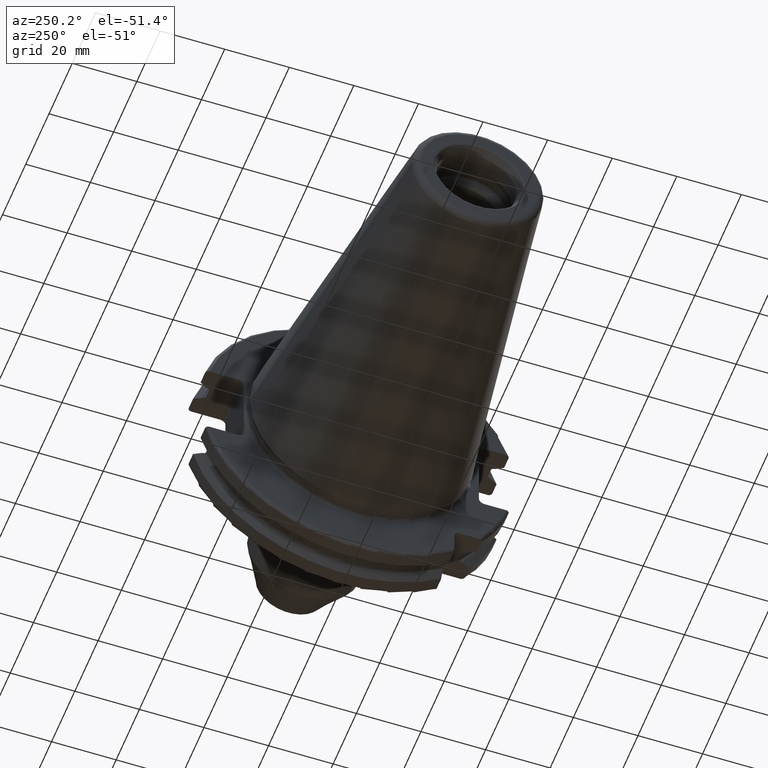
[diagram: clean part render]
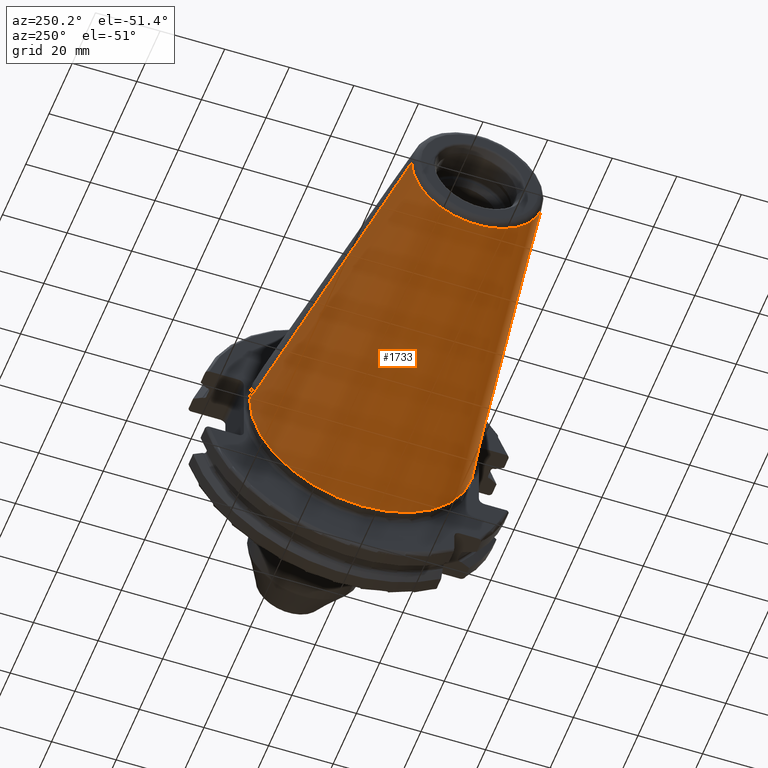
[diagram: same view with one face highlighted and labeled with its STEP entity id]
A machine part, auxiliary view. The second image highlights one B-rep face of the part: STEP entity #1733.
In plain terms, the highlighted conical surface has half-angle 8.298 deg.
Its self-contained STEP definition (entity closure, byte-faithful):
#32=CARTESIAN_POINT('',(-9.967471700563E1,0.E0,0.E0));
#33=DIRECTION('',(-1.E0,0.E0,0.E0));
#34=DIRECTION('',(0.E0,1.E0,0.E0));
#35=AXIS2_PLACEMENT_3D('',#32,#33,#34);
#47=DIRECTION('',(-9.895312636440E-1,-1.443186691705E-1,0.E0));
#48=VECTOR('',#47,1.002343617797E2);
#49=CARTESIAN_POINT('',(-4.896823332305E-1,3.485358204157E1,0.E0));
#50=LINE('',#49,#48);
#51=DIRECTION('',(-9.895312636440E-1,1.443186691705E-1,0.E0));
#52=VECTOR('',#51,1.002343617797E2);
#53=CARTESIAN_POINT('',(-4.896823332305E-1,-3.485358204157E1,0.E0));
#54=LINE('',#53,#52);
#55=CARTESIAN_POINT('',(-4.896823332305E-1,0.E0,0.E0));
#56=DIRECTION('',(-1.E0,0.E0,0.E0));
#57=DIRECTION('',(0.E0,1.E0,0.E0));
#58=AXIS2_PLACEMENT_3D('',#55,#56,#57);
#1388=CARTESIAN_POINT('',(-9.967471700563E1,2.038789234437E1,0.E0));
#1390=VERTEX_POINT('',#1388);
#1392=CARTESIAN_POINT('',(-9.967471700563E1,-2.038789234437E1,0.E0));
#1394=VERTEX_POINT('',#1392);
#1456=CARTESIAN_POINT('',(-4.896823332305E-1,3.485358204157E1,0.E0));
#1457=VERTEX_POINT('',#1456);
#1458=CARTESIAN_POINT('',(-4.896823332305E-1,-3.485358204157E1,0.E0));
#1459=VERTEX_POINT('',#1458);
#1721=CARTESIAN_POINT('',(-5.008219966943E1,0.E0,0.E0));
#1722=DIRECTION('',(1.E0,0.E0,0.E0));
#1723=DIRECTION('',(0.E0,-1.E0,0.E0));
#1724=AXIS2_PLACEMENT_3D('',#1721,#1722,#1723);
#1725=CONICAL_SURFACE('',#1724,2.762073719297E1,8.297826828206E0);
#1726=ORIENTED_EDGE('',*,*,#1711,.T.);
#1727=ORIENTED_EDGE('',*,*,#1688,.T.);
#1728=ORIENTED_EDGE('',*,*,#1715,.F.);
#1730=ORIENTED_EDGE('',*,*,#1729,.F.);
#1731=EDGE_LOOP('',(#1726,#1727,#1728,#1730));
#1732=FACE_OUTER_BOUND('',#1731,.F.);
#1733=ADVANCED_FACE('',(#1732),#1725,.T.);
#36=CIRCLE('',#35,2.038789234437E1);
#59=CIRCLE('',#58,3.485358204157E1);
#1688=EDGE_CURVE('',#1390,#1394,#36,.T.);
#1711=EDGE_CURVE('',#1457,#1390,#50,.T.);
#1715=EDGE_CURVE('',#1459,#1394,#54,.T.);
#1729=EDGE_CURVE('',#1457,#1459,#59,.T.);